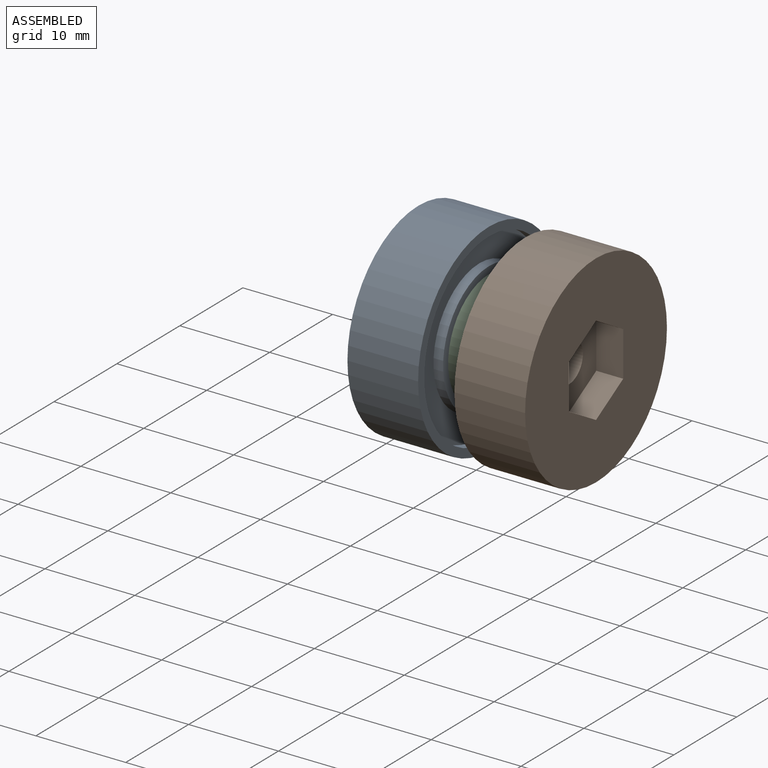
[diagram: assembled view]
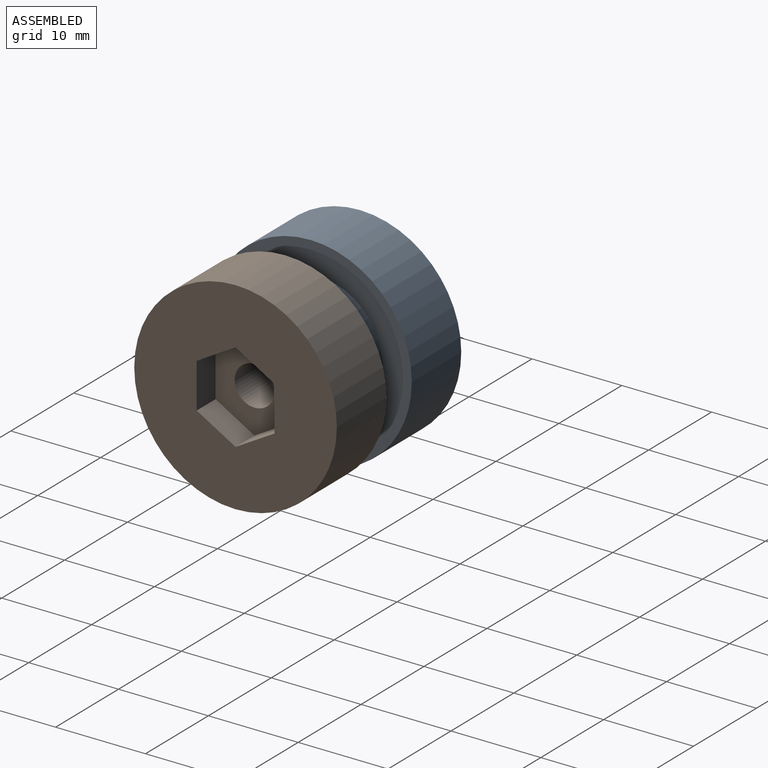
[diagram: assembled view, second angle]
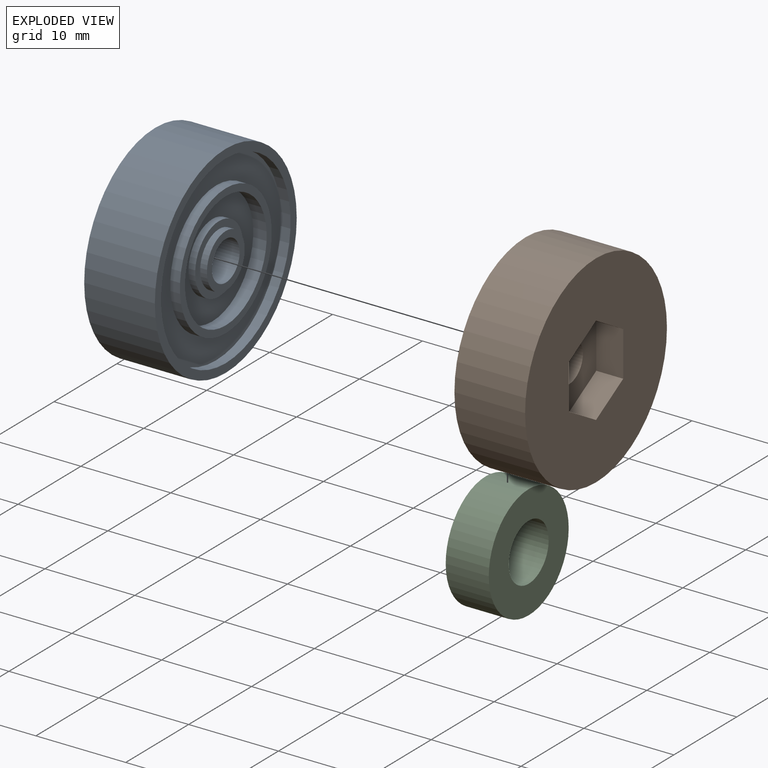
[diagram: exploded view]
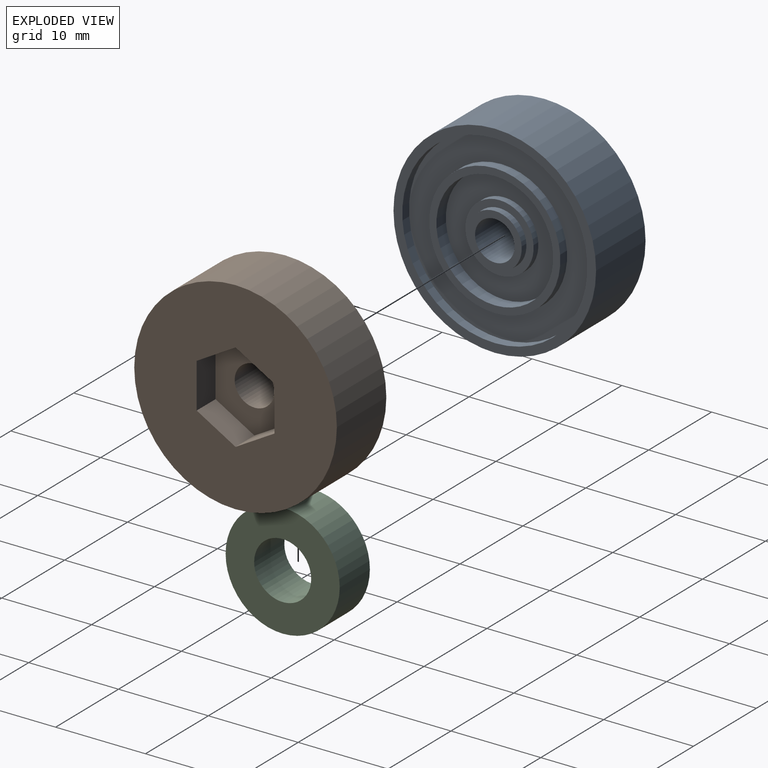
[diagram: exploded view, second angle]
ASSEMBLY  parts=3 mates=2
PART A: 21 faces, bbox 7.9x22.6x22.6 mm
  f0: cylinder r=2.2mm len=4.87mm, axis (1,0,0), area 67.2mm2, adj f11,f20
  f1: cylinder r=3.8mm len=7.6mm, axis (1,0,0), area 17.9mm2, adj f2,f13
  f2: plane 13x13mm, normal (1,0,0), area 87.4mm2, adj f1,f3
  f3: cylinder r=6.5mm len=13mm, axis (1,0,0), area 61.3mm2, adj f2,f4
  f4: plane 14.6x14.6mm, normal (1,0,0), area 34.7mm2, adj f3,f5
  f5: cylinder r=7.3mm len=14.6mm, axis (1,0,0), area 49.3mm2, adj f4,f6
  f6: plane 20.6x20.6mm, normal (1,0,0), area 165.9mm2, adj f5,f7
  f7: cylinder r=10.3mm len=20.6mm, axis (1,0,0), area 69.6mm2, adj f6,f8
  f8: plane 22.55x22.55mm, normal (1,0,0), area 66.1mm2, adj f7,f9
  f9: cylinder r=11.28mm len=22.55mm, axis (1,0,0), area 557.2mm2, adj f8,f10
  f10: plane 22.55x22.55mm, normal (-1,0,0), area 334.5mm2, adj f9,f14,f15,f16,f17,f18,f19
  f11: plane 6x6mm, normal (1,0,0), area 13.1mm2, adj f0,f12
  f12: cylinder r=3mm len=6mm, axis (1,0,0), area 14.1mm2, adj f11,f13
  f13: plane 7.6x7.6mm, normal (1,0,0), area 17.1mm2, adj f1,f12
  f14: plane 5x3mm, normal (0,1,0), area 15mm2, adj f10,f15,f19,f20
  f15: plane 4.33x3mm, normal (0,0.5,-0.87), area 15mm2, adj f10,f14,f16,f20
  f16: plane 4.33x3mm, normal (0,-0.5,-0.87), area 15mm2, adj f10,f15,f17,f20
  f17: plane 5x3mm, normal (0,-1,0), area 15mm2, adj f10,f16,f18,f20
  f18: plane 4.33x3mm, normal (0,-0.5,0.87), area 15mm2, adj f10,f17,f19,f20
  f19: plane 4.33x3mm, normal (0,0.5,0.87), area 15mm2, adj f10,f14,f18,f20
  f20: plane 10x8.66mm, normal (-1,0,0), area 49.7mm2, adj f0,f14,f15,f16,f17,f18,f19
PART B: same geometry as A
PART C: 4 faces, bbox 12.7x4.8x12.7 mm
  f0: cylinder r=3.17mm len=6.35mm, axis (0,1,0), area 95.7mm2, adj f2,f3
  f1: cylinder r=6.35mm len=12.7mm, axis (0,1,0), area 191.3mm2, adj f2,f3
  f2: plane 12.7x12.7mm, normal (0,-1,0), area 95mm2, adj f0,f1
  f3: plane 12.7x12.7mm, normal (0,1,0), area 95mm2, adj f0,f1
PLACE A t=(-30.83,-13.91,6.22)mm
PLACE B rot(axis=(0,1,0),180deg) t=(-28.78,-13.91,6.22)mm
PLACE C rot(axis=(0.58,0.58,-0.58),120deg) t=(-27.41,-13.91,6.22)mm
MATE fastened B.f0 <-> C.f0  axis (-1,0,0) through (-27.41,-13.91,6.22)mm
MATE fastened C.f0 <-> A.f0  axis (1,0,0) through (-32.2,-13.91,6.22)mm
